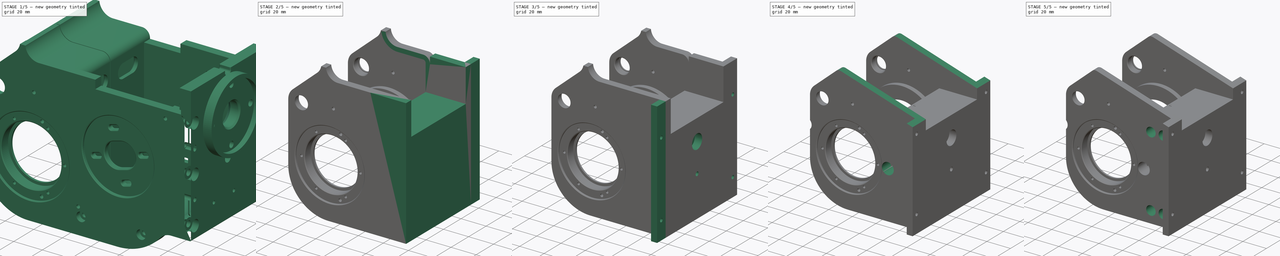
[diagram: build sequence overview — one tinted view per stage of 5, left to right]
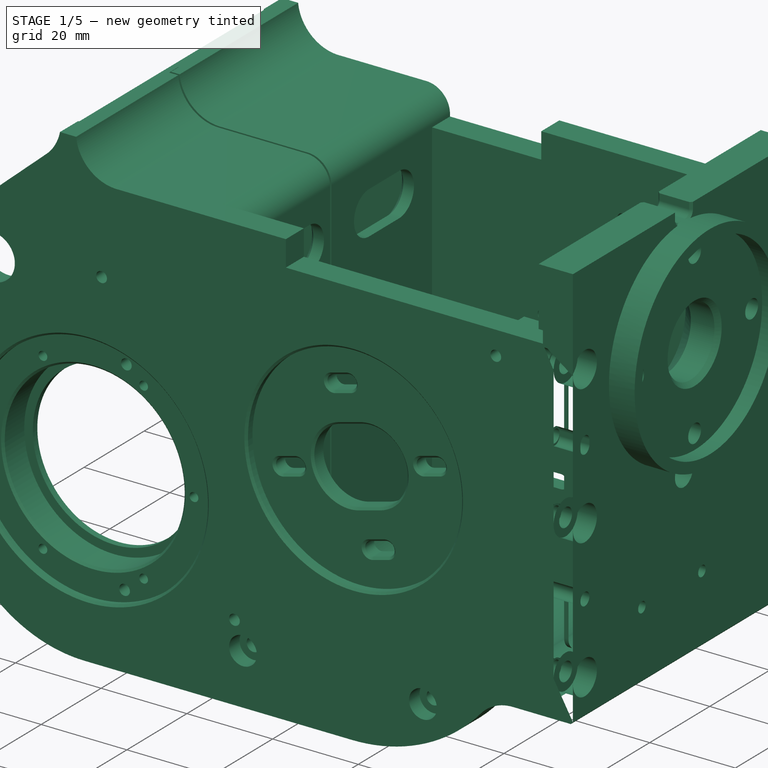
[diagram: stage 1 of 5 — iso view after this stage's code; geometry added in this stage tinted green]
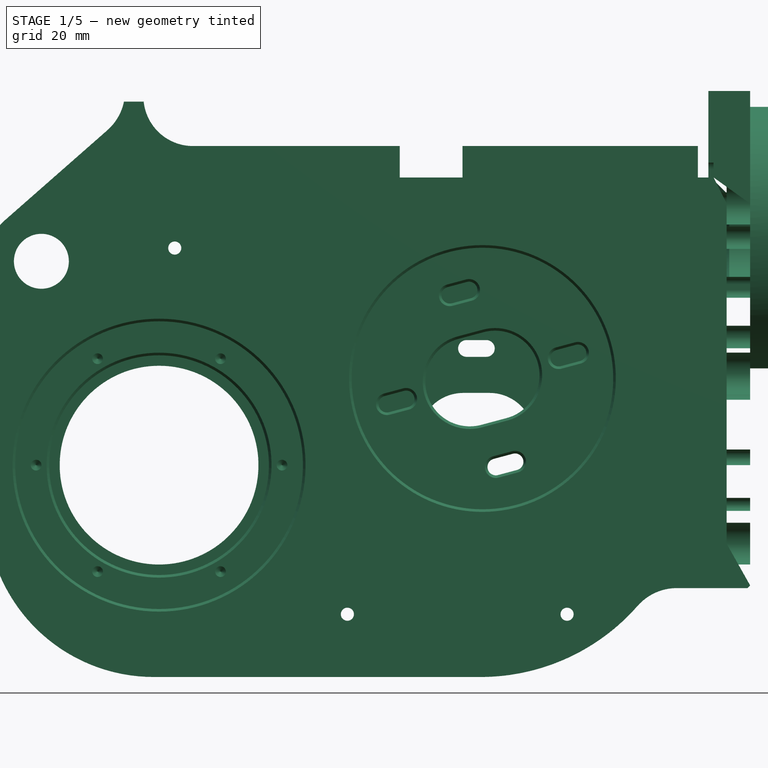
[diagram: stage 1 of 5 — front view after this stage's code; geometry added in this stage tinted green]
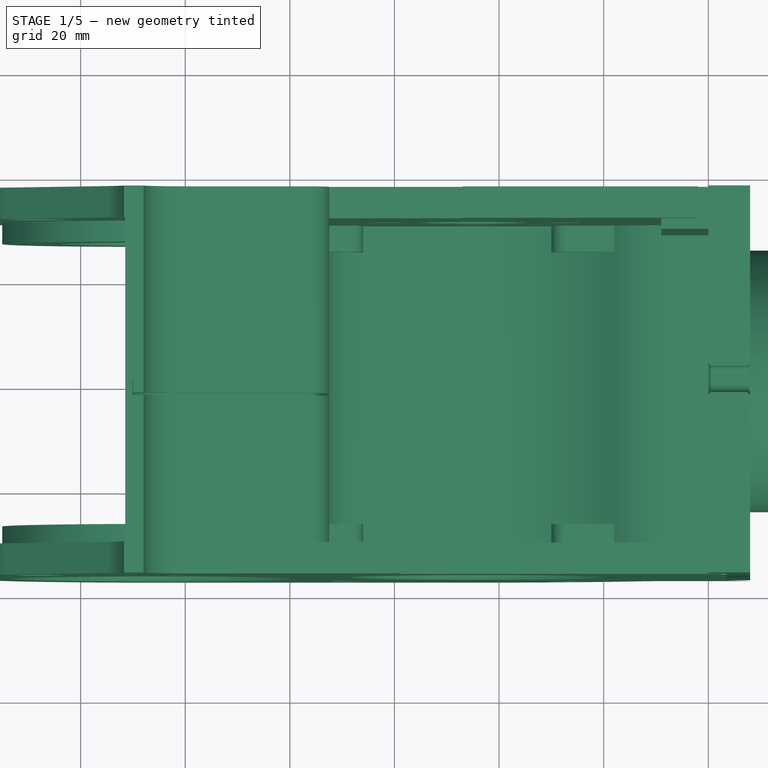
[diagram: stage 1 of 5 — top view after this stage's code; geometry added in this stage tinted green]
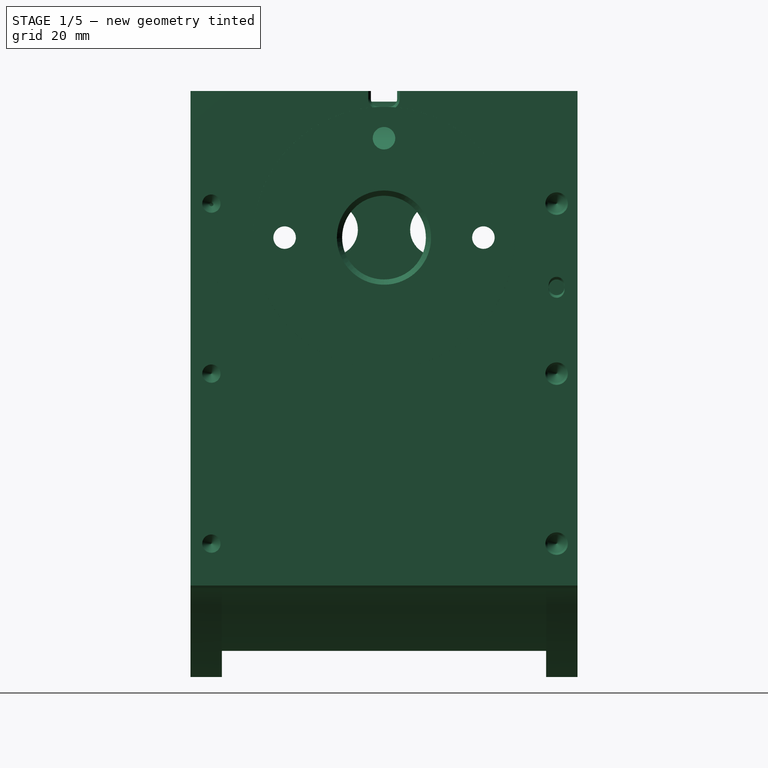
[diagram: stage 1 of 5 — right view after this stage's code; geometry added in this stage tinted green]
FCSTD DOCUMENT  (FreeCAD 0.21R33668 +26 (Git))
Label: link_1_0
License: All rights reserved
LicenseURL: https://en.wikipedia.org/wiki/All_rights_reserved
objects: Sketcher::SketchObject×19, PartDesign::Pocket×16, PartDesign::Pad×3, Part::Feature×1, PartDesign::FeatureBase×1, PartDesign::Fillet×1, PartDesign::Body×1
note: 62 computed .brp shape members not serialized (recipe doc carries the construction recipe); baked Part::Feature solids carry a one-line shape summary decoded from their .brp

FEATURE [Part::Feature] Part__Feature  label="J2_J3_1___"
  shape: bbox 152.1 x 154.8 x 160.3 mm, 713 faces (baked)
FEATURE [PartDesign::FeatureBase] BaseFeature
  BaseFeature = -> Part__Feature
FEATURE [Sketcher::SketchObject] Sketch
  ExternalGeometry = -> [BaseFeature]
  FullyConstrained = false
  MapMode = 5
  Placement = pos=(-111.5,0,0) rot=(0.57735,-0.57735,-0.57735;2.0944rad)
  Support = -> [BaseFeature]
  sketch-geometry (4):
    g0: LineSegment StartX=-86.4986 StartY=79.6822 StartZ=0 EndX=109.62 EndY=79.6822 EndZ=0
    g1: LineSegment StartX=109.62 StartY=79.6822 StartZ=0 EndX=109.62 EndY=28.0263 EndZ=0
    g2: LineSegment StartX=109.62 StartY=28.0263 StartZ=0 EndX=-86.4986 EndY=28.0263 EndZ=0
    g3: LineSegment StartX=-86.4986 StartY=28.0263 StartZ=0 EndX=-86.4986 EndY=79.6822 EndZ=0
  constraints (9):
    c: Coincident(g0,g1)
    c: Coincident(g1,g2)
    c: Coincident(g2,g3)
    c: Coincident(g3,g0)
    c: Horizontal(g0)
    c: Horizontal(g2)
    c: Vertical(g1)
    c: Vertical(g3)
    c: Horizontal(g-4,g1)
FEATURE [PartDesign::Pocket] Pocket
  BaseFeature = -> BaseFeature
  Direction = (1,0,0)
  Length = 5
  Length2 = 5
  Profile = -> Sketch
  ReferenceAxis = -> Sketch [N_Axis]
  Type = 1
FEATURE [Sketcher::SketchObject] Sketch001
  ExternalGeometry = -> [Pocket]
  FullyConstrained = false
  MapMode = 5
  Placement = pos=(-111.5,0,0) rot=(0.57735,-0.57735,-0.57735;2.0944rad)
  Support = -> [Pocket]
  sketch-geometry (8):
    g0: LineSegment StartX=-103.758 StartY=41.7015 StartZ=0 EndX=-37 EndY=41.7015 EndZ=0
    g1: LineSegment StartX=-37 StartY=41.7015 StartZ=0 EndX=-37 EndY=-98.8074 EndZ=0
    g2: LineSegment StartX=-37 StartY=-98.8074 StartZ=0 EndX=-103.758 EndY=-98.8074 EndZ=0
    g3: LineSegment StartX=-103.758 StartY=-98.8074 StartZ=0 EndX=-103.758 EndY=41.7015 EndZ=0
    g4: LineSegment StartX=114.317 StartY=40.4768 StartZ=0 EndX=37 EndY=40.4768 EndZ=0
    g5: LineSegment StartX=37 StartY=40.4768 StartZ=0 EndX=37 EndY=-98.0913 EndZ=0
    g6: LineSegment StartX=37 StartY=-98.0913 StartZ=0 EndX=114.317 EndY=-98.0913 EndZ=0
    g7: LineSegment StartX=114.317 StartY=-98.0913 StartZ=0 EndX=114.317 EndY=40.4768 EndZ=0
  constraints (18):
    c: Coincident(g0,g1)
    c: Coincident(g1,g2)
    c: Coincident(g2,g3)
    c: Coincident(g3,g0)
    c: Horizontal(g0)
    c: Horizontal(g2)
    c: Vertical(g1)
    c: Vertical(g3)
    c: Coincident(g4,g5)
    c: Coincident(g5,g6)
    c: Coincident(g6,g7)
    c: Coincident(g7,g4)
    c: Horizontal(g4)
    c: Horizontal(g6)
    c: Vertical(g5)
    c: Vertical(g7)
    c: Vertical(g-4,g4)
    c: Vertical(g0,g-3)
FEATURE [PartDesign::Pocket] Pocket001
  BaseFeature = -> Pocket
  Direction = (1,0,0)
  Length = 200
  Length2 = 200
  Profile = -> Sketch001
  ReferenceAxis = -> Sketch001 [N_Axis]
  Type = 4
FEATURE [Sketcher::SketchObject] Sketch002
  ExternalGeometry = -> [Pocket001]
  FullyConstrained = false
  MapMode = 5
  Placement = pos=(0,37,0) rot=(0,0.707107,0.707107;3.14159rad)
  Support = -> [Pocket001]
  sketch-geometry (4):
    g0: LineSegment StartX=0.5 StartY=28.0263 StartZ=0 EndX=116.939 EndY=28.0263 EndZ=0
    g1: LineSegment StartX=116.939 StartY=28.0263 StartZ=0 EndX=116.939 EndY=26 EndZ=0
    g2: LineSegment StartX=116.939 StartY=26 StartZ=0 EndX=0.5 EndY=26 EndZ=0
    g3: LineSegment StartX=0.5 StartY=26 StartZ=0 EndX=0.5 EndY=28.0263 EndZ=0
  constraints (10):
    c: Coincident(g0,g1)
    c: Coincident(g1,g2)
    c: Coincident(g2,g3)
    c: Coincident(g3,g0)
    c: Horizontal(g0)
    c: Horizontal(g2)
    c: Vertical(g1)
    c: Vertical(g3)
    c: Coincident(g0,g-3)
    c: Horizontal(g1,g-4)
FEATURE [PartDesign::Pocket] Pocket002
  BaseFeature = -> Pocket001
  Direction = (0,-1,2e-16)
  Length = 5
  Length2 = 5
  Profile = -> Sketch002
  ReferenceAxis = -> Sketch002 [N_Axis]
  Type = 1
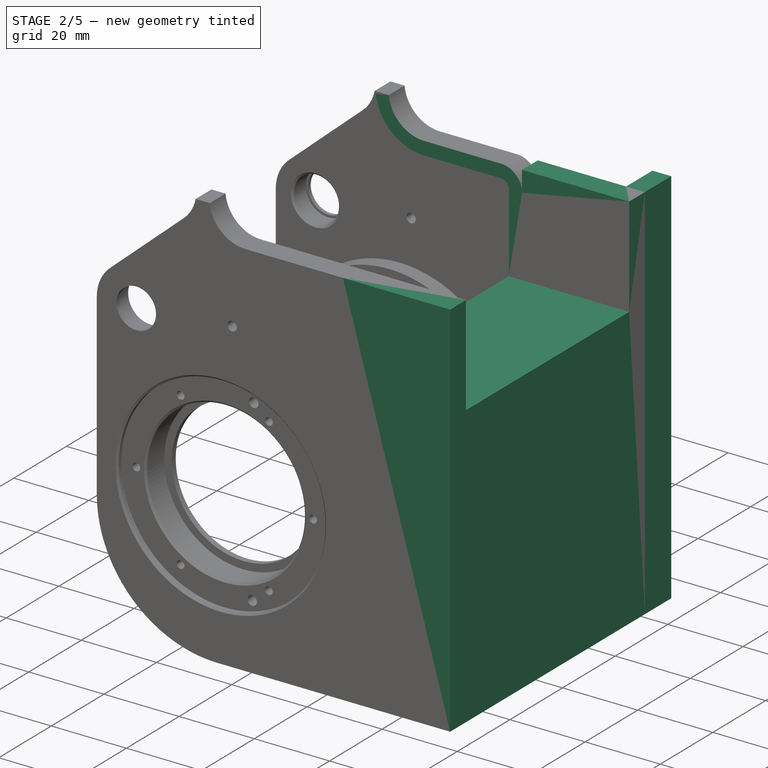
[diagram: stage 2 of 5 — iso view after this stage's code; geometry added in this stage tinted green]
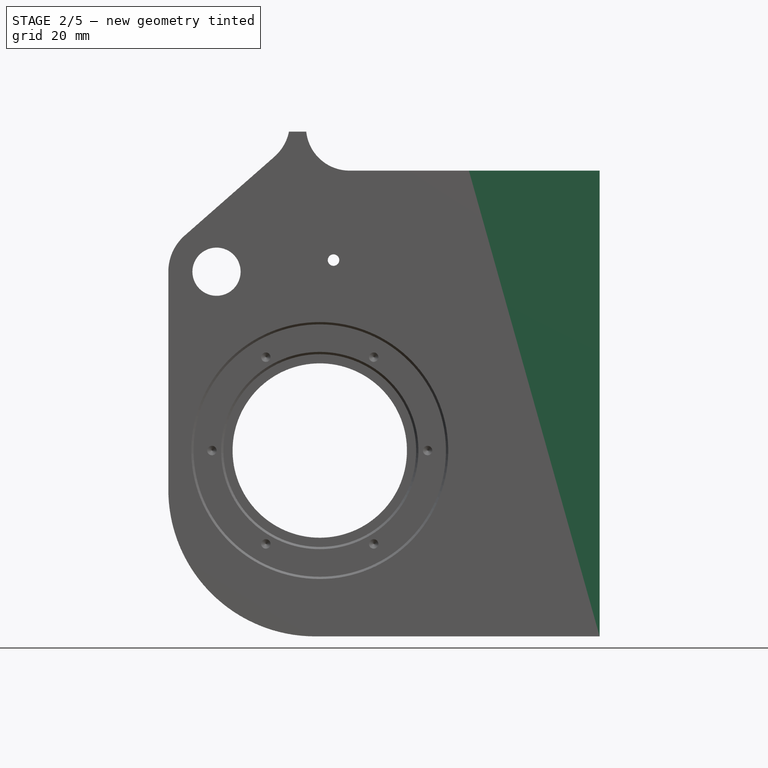
[diagram: stage 2 of 5 — front view after this stage's code; geometry added in this stage tinted green]
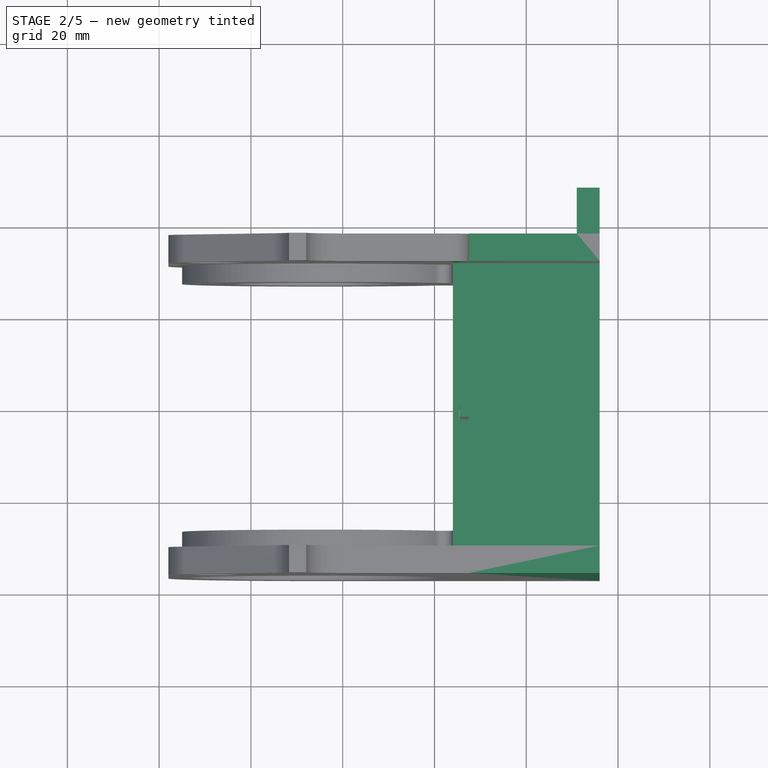
[diagram: stage 2 of 5 — top view after this stage's code; geometry added in this stage tinted green]
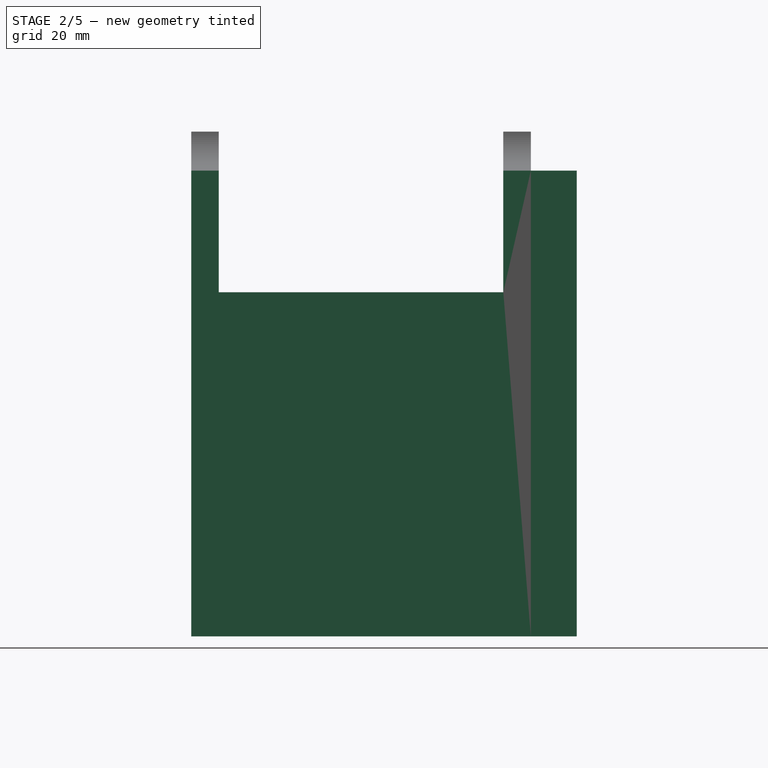
[diagram: stage 2 of 5 — right view after this stage's code; geometry added in this stage tinted green]
FEATURE [Sketcher::SketchObject] Sketch003
  ExternalGeometry = -> [Pocket002]
  FullyConstrained = false
  MapMode = 5
  Placement = pos=(0,37,0) rot=(0,0.707107,0.707107;3.14159rad)
  Support = -> [Pocket002]
  sketch-geometry (4):
    g0: LineSegment StartX=-31.8277 StartY=43.3981 StartZ=0 EndX=72.5 EndY=43.3981 EndZ=0
    g1: LineSegment StartX=72.5 StartY=43.3981 StartZ=0 EndX=72.5 EndY=-93.7971 EndZ=0
    g2: LineSegment StartX=72.5 StartY=-93.7971 StartZ=0 EndX=-31.8277 EndY=-93.7971 EndZ=0
    g3: LineSegment StartX=-31.8277 StartY=-93.7971 StartZ=0 EndX=-31.8277 EndY=43.3981 EndZ=0
  constraints (9):
    c: Coincident(g0,g1)
    c: Coincident(g1,g2)
    c: Coincident(g2,g3)
    c: Coincident(g3,g0)
    c: Horizontal(g0)
    c: Horizontal(g2)
    c: Vertical(g1)
    c: Vertical(g3)
    c: Vertical(g0,g-5)
FEATURE [PartDesign::Pocket] Pocket003
  BaseFeature = -> Pocket002
  Direction = (0,-1,2e-16)
  Length = 5
  Length2 = 5
  Profile = -> Sketch003
  ReferenceAxis = -> Sketch003 [N_Axis]
  Type = 1
FEATURE [Sketcher::SketchObject] Sketch004
  ExternalGeometry = -> [Pocket003]
  FullyConstrained = true
  MapMode = 5
  Placement = pos=(0,37,0) rot=(0,0.707107,0.707107;3.14159rad)
  Support = -> [Pocket003]
  sketch-geometry (4):
    g0: LineSegment StartX=72.5 StartY=17.5 StartZ=0 EndX=44 EndY=17.5 EndZ=0
    g1: LineSegment StartX=44 StartY=17.5 StartZ=0 EndX=44 EndY=-84 EndZ=0
    g2: LineSegment StartX=44 StartY=-84 StartZ=0 EndX=72.5 EndY=-84 EndZ=0
    g3: LineSegment StartX=72.5 StartY=-84 StartZ=0 EndX=72.5 EndY=17.5 EndZ=0
  constraints (11):
    c: Coincident(g0,g1)
    c: Coincident(g1,g2)
    c: Coincident(g2,g3)
    c: Coincident(g3,g0)
    c: Horizontal(g0)
    c: Horizontal(g2)
    c: Vertical(g1)
    c: Vertical(g3)
    c: Coincident(g0,g-3)
    c: Horizontal(g1,g-4)
    c: DistanceX(g0,g-5) = 61
FEATURE [PartDesign::Pad] Pad
  BaseFeature = -> Pocket003
  Direction = (0,1,-2e-16)
  Length = 10
  Length2 = 10
  Profile = -> Sketch004
  ReferenceAxis = -> Sketch004 [N_Axis]
  Reversed = true
  Type = 3
  UpToFace = -> Pocket003 [Face35]
FEATURE [Sketcher::SketchObject] Sketch005
  ExternalGeometry = -> [Pad]
  FullyConstrained = true
  MapMode = 5
  Placement = pos=(-76,0,0) rot=(0.57735,-0.57735,-0.57735;2.0944rad)
  Support = -> [Pad]
  sketch-geometry (4):
    g0: LineSegment StartX=31 StartY=26 StartZ=0 EndX=-31 EndY=26 EndZ=0
    g1: LineSegment StartX=-31 StartY=26 StartZ=0 EndX=-31 EndY=-9 EndZ=0
    g2: LineSegment StartX=-31 StartY=-9 StartZ=0 EndX=31 EndY=-9 EndZ=0
    g3: LineSegment StartX=31 StartY=-9 StartZ=0 EndX=31 EndY=26 EndZ=0
  constraints (11):
    c: Coincident(g0,g1)
    c: Coincident(g1,g2)
    c: Coincident(g2,g3)
    c: Coincident(g3,g0)
    c: Horizontal(g0)
    c: Horizontal(g2)
    c: Vertical(g1)
    c: Vertical(g3)
    c: Coincident(g0,g-4)
    c: Vertical(g0,g-3)
    c: DistanceY(g2,g-1) = 9
FEATURE [PartDesign::Pocket] Pocket004
  BaseFeature = -> Pad
  Direction = (1,0,0)
  Length = 100
  Length2 = 100
  Profile = -> Sketch005
  ReferenceAxis = -> Sketch005 [N_Axis]
  Type = 4
FEATURE [Sketcher::SketchObject] Sketch006
  ExternalGeometry = -> [Pocket004]
  FullyConstrained = true
  MapMode = 5
  Placement = pos=(0,37,-1.04e-14) rot=(0,0.707107,0.707107;3.14159rad)
  Support = -> [Pocket004]
  sketch-geometry (4):
    g0: LineSegment StartX=44 StartY=17.5 StartZ=0 EndX=49 EndY=17.5 EndZ=0
    g1: LineSegment StartX=49 StartY=17.5 StartZ=0 EndX=49 EndY=-84 EndZ=0
    g2: LineSegment StartX=49 StartY=-84 StartZ=0 EndX=44 EndY=-84 EndZ=0
    g3: LineSegment StartX=44 StartY=-84 StartZ=0 EndX=44 EndY=17.5 EndZ=0
  constraints (11):
    c: Coincident(g0,g1)
    c: Coincident(g1,g2)
    c: Coincident(g2,g3)
    c: Coincident(g3,g0)
    c: Horizontal(g0)
    c: Horizontal(g2)
    c: Vertical(g1)
    c: Vertical(g3)
    c: Coincident(g0,g-4)
    c: DistanceX(g0,g0) = 5
    c: Horizontal(g2,g-3)
FEATURE [PartDesign::Pad] Pad001
  BaseFeature = -> Pocket004
  Direction = (0,1,-2e-16)
  Length = 10
  Length2 = 10
  Profile = -> Sketch006
  ReferenceAxis = -> Sketch006 [N_Axis]
  Type = 0
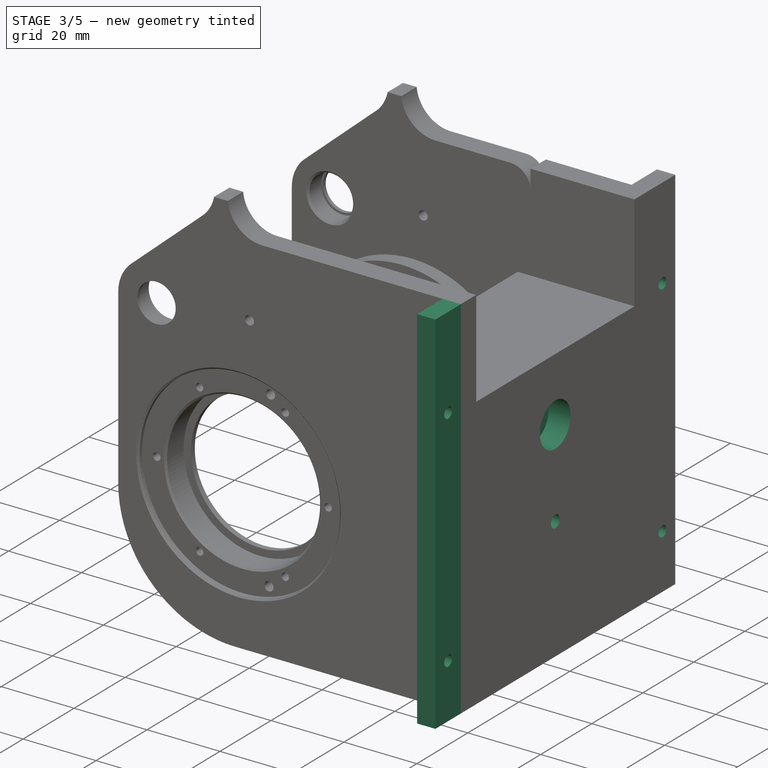
[diagram: stage 3 of 5 — iso view after this stage's code; geometry added in this stage tinted green]
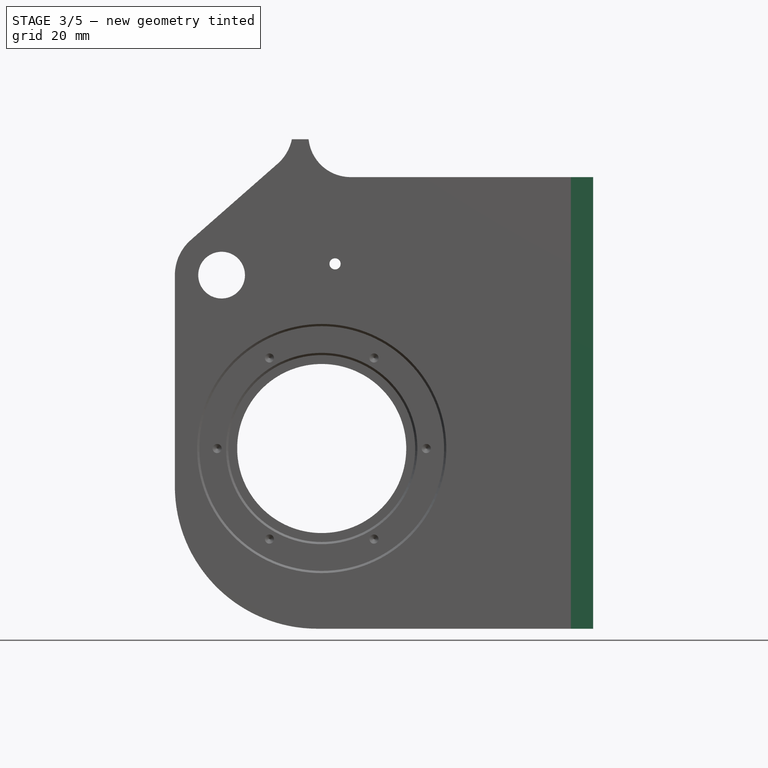
[diagram: stage 3 of 5 — front view after this stage's code; geometry added in this stage tinted green]
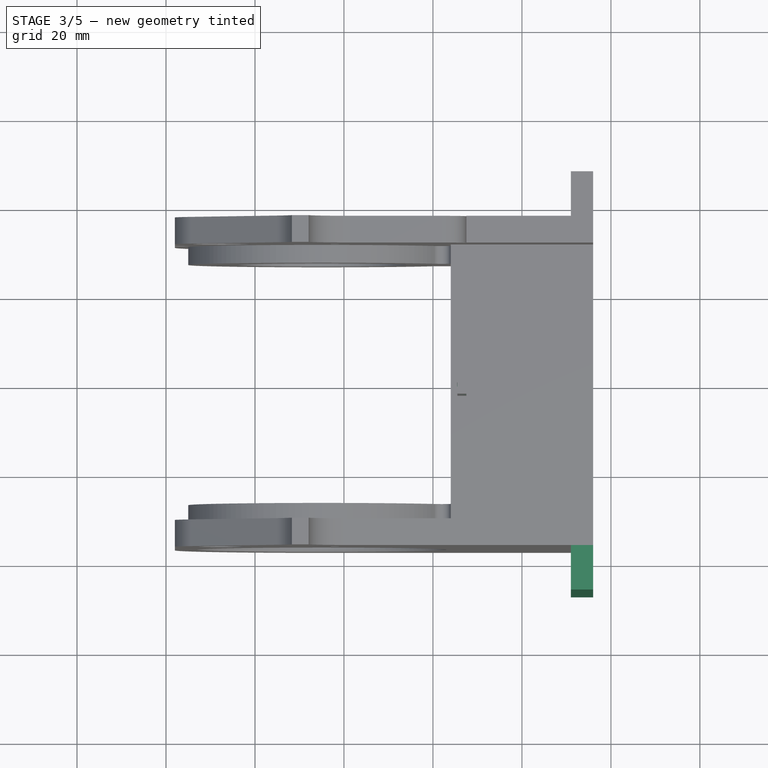
[diagram: stage 3 of 5 — top view after this stage's code; geometry added in this stage tinted green]
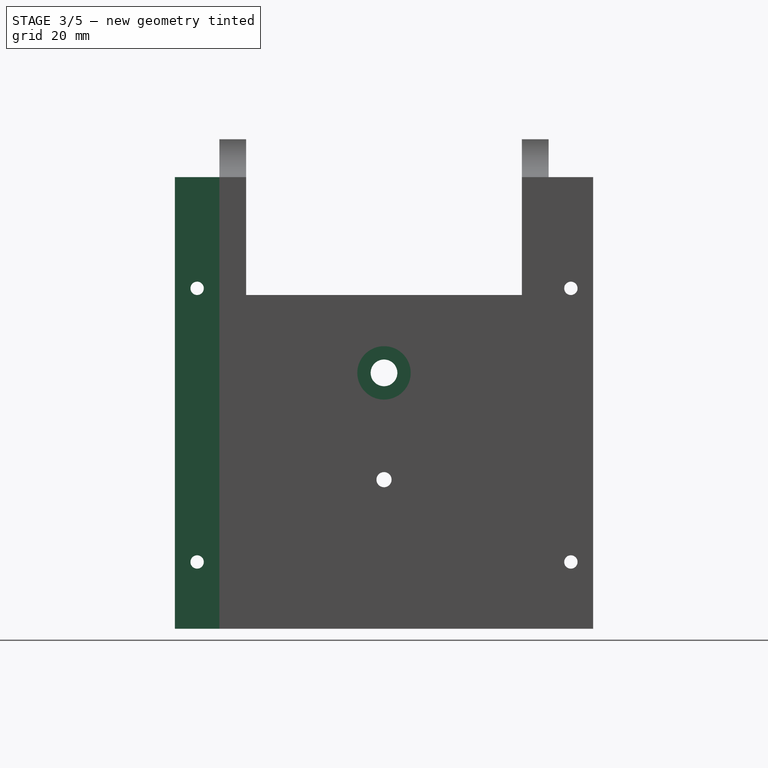
[diagram: stage 3 of 5 — right view after this stage's code; geometry added in this stage tinted green]
FEATURE [Sketcher::SketchObject] Sketch007
  ExternalGeometry = -> [Pad001]
  FullyConstrained = true
  MapMode = 5
  Placement = pos=(0,-37,0) rot=(1,0,0;1.5708rad)
  Support = -> [Pad001]
  sketch-geometry (4):
    g0: LineSegment StartX=-44 StartY=17.5 StartZ=0 EndX=-49 EndY=17.5 EndZ=0
    g1: LineSegment StartX=-49 StartY=17.5 StartZ=0 EndX=-49 EndY=-84 EndZ=0
    g2: LineSegment StartX=-49 StartY=-84 StartZ=0 EndX=-44 EndY=-84 EndZ=0
    g3: LineSegment StartX=-44 StartY=-84 StartZ=0 EndX=-44 EndY=17.5 EndZ=0
  constraints (12):
    c: Coincident(g0,g1)
    c: Coincident(g1,g2)
    c: Coincident(g2,g3)
    c: Coincident(g3,g0)
    c: Horizontal(g0)
    c: Horizontal(g2)
    c: Vertical(g1)
    c: Vertical(g3)
    c: DistanceX(g0,g0) = 5
    c: Vertical(g0,g-4)
    c: Horizontal(g0,g-4)
    c: Horizontal(g2,g-3)
FEATURE [PartDesign::Pad] Pad002
  BaseFeature = -> Pad001
  Direction = (0,-1,2e-16)
  Length = 10
  Length2 = 10
  Profile = -> Sketch007
  ReferenceAxis = -> Sketch007 [N_Axis]
  Type = 0
FEATURE [Sketcher::SketchObject] Sketch008
  ExternalGeometry = -> [Pad002]
  FullyConstrained = true
  MapMode = 5
  Placement = pos=(-49,0,0) rot=(0.57735,-0.57735,-0.57735;2.0944rad)
  Support = -> [Pad002]
  sketch-geometry (4):
    g0: Circle CenterX=42 CenterY=-7.5 CenterZ=0 NormalX=0 NormalY=0 NormalZ=1 AngleXU=0 Radius=1.5
    g1: Circle CenterX=42 CenterY=-69 CenterZ=0 NormalX=0 NormalY=0 NormalZ=1 AngleXU=0 Radius=1.5
    g2: Circle CenterX=-42 CenterY=-7.5 CenterZ=0 NormalX=0 NormalY=0 NormalZ=1 AngleXU=0 Radius=1.5
    g3: Circle CenterX=-42 CenterY=-69 CenterZ=0 NormalX=0 NormalY=0 NormalZ=1 AngleXU=0 Radius=1.5
  constraints (14):
    c: Vertical(g3,g2)
    c: Equal(g0,g1)
    c: Equal(g1,g3)
    c: Equal(g2,g3)
    c: Vertical(g1,g0)
    c: Horizontal(g2,g0)
    c: Horizontal(g3,g1)
    c: DistanceX(g0,g-3) = 5
    c: DistanceX(g-4,g2) = 5
    c: DistanceY(g0,g-3) = 25
    c: Diameter(g2) = 3
    c: DistanceY(g-5,g1) = 15
    c: DistanceX(g3,g1) = 84
    c: DistanceY(g1,g0) = 61.5
FEATURE [PartDesign::Pocket] Pocket005
  BaseFeature = -> Pad002
  Direction = (1,0,0)
  Length = 5
  Length2 = 5
  Profile = -> Sketch008
  ReferenceAxis = -> Sketch008 [N_Axis]
  Type = 1
FEATURE [Sketcher::SketchObject] Sketch009
  ExternalGeometry = -> [Pocket005]
  FullyConstrained = true
  MapMode = 5
  Placement = pos=(-44,0,0) rot=(0.57735,0.57735,0.57735;2.0944rad)
  Support = -> [Pocket005]
  sketch-geometry (2):
    g0: Circle CenterX=0 CenterY=-26.5 CenterZ=0 NormalX=0 NormalY=0 NormalZ=1 AngleXU=0 Radius=3
    g1: Circle CenterX=0 CenterY=-50.5 CenterZ=0 NormalX=0 NormalY=0 NormalZ=1 AngleXU=0 Radius=1.7
  constraints (6):
    c: PointOnObject(g0,g-2)
    c: Diameter(g0) = 6
    c: DistanceY(g-3,g0) = 57.5
    c: PointOnObject(g1,g-2)
    c: Diameter(g1) = 3.4
    c: DistanceY(g1,g0) = 24
FEATURE [PartDesign::Pocket] Pocket006
  BaseFeature = -> Pocket005
  Direction = (-1,0,0)
  Length = 5
  Length2 = 5
  Profile = -> Sketch009
  ReferenceAxis = -> Sketch009 [N_Axis]
  Type = 1
FEATURE [Sketcher::SketchObject] Sketch010
  ExternalGeometry = -> [Pocket006]
  FullyConstrained = true
  MapMode = 5
  Placement = pos=(-44,0,0) rot=(0.57735,0.57735,0.57735;2.0944rad)
  Support = -> [Pocket006]
  sketch-geometry (1):
    g0: Circle CenterX=0 CenterY=-26.5 CenterZ=0 NormalX=0 NormalY=0 NormalZ=1 AngleXU=0 Radius=6
  constraints (2):
    c: Coincident(g0,g-4)
    c: Diameter(g0) = 12
FEATURE [PartDesign::Pocket] Pocket007
  BaseFeature = -> Pocket006
  Direction = (-1,0,0)
  Length = 6
  Length2 = 5
  Profile = -> Sketch010
  ReferenceAxis = -> Sketch010 [N_Axis]
  Type = 0
FEATURE [Sketcher::SketchObject] Sketch011
  ExternalGeometry = -> [Pocket007]
  FullyConstrained = true
  MapMode = 5
  Placement = pos=(-76,0,0) rot=(0.57735,-0.57735,-0.57735;2.0944rad)
  Support = -> [Pocket007]
  sketch-geometry (1):
    g0: Circle CenterX=0 CenterY=-50.5 CenterZ=0 NormalX=0 NormalY=0 NormalZ=1 AngleXU=0 Radius=5.6
  constraints (2):
    c: Coincident(g0,g-3)
    c: Diameter(g0) = 11.2
FEATURE [PartDesign::Pocket] Pocket008
  BaseFeature = -> Pocket007
  Direction = (1,0,0)
  Length = 5.2
  Length2 = 5
  Profile = -> Sketch011
  ReferenceAxis = -> Sketch011 [N_Axis]
  Type = 0
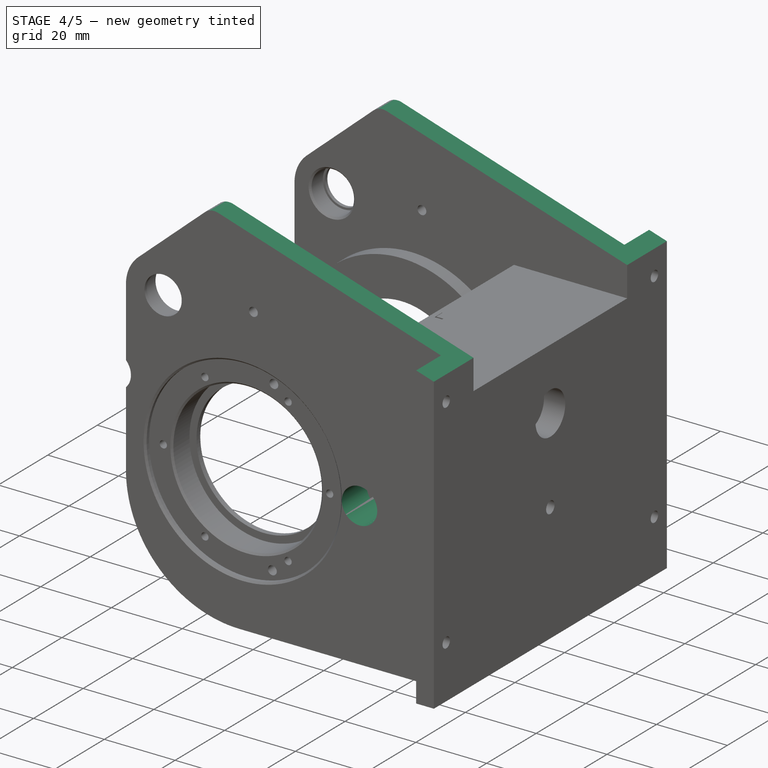
[diagram: stage 4 of 5 — iso view after this stage's code; geometry added in this stage tinted green]
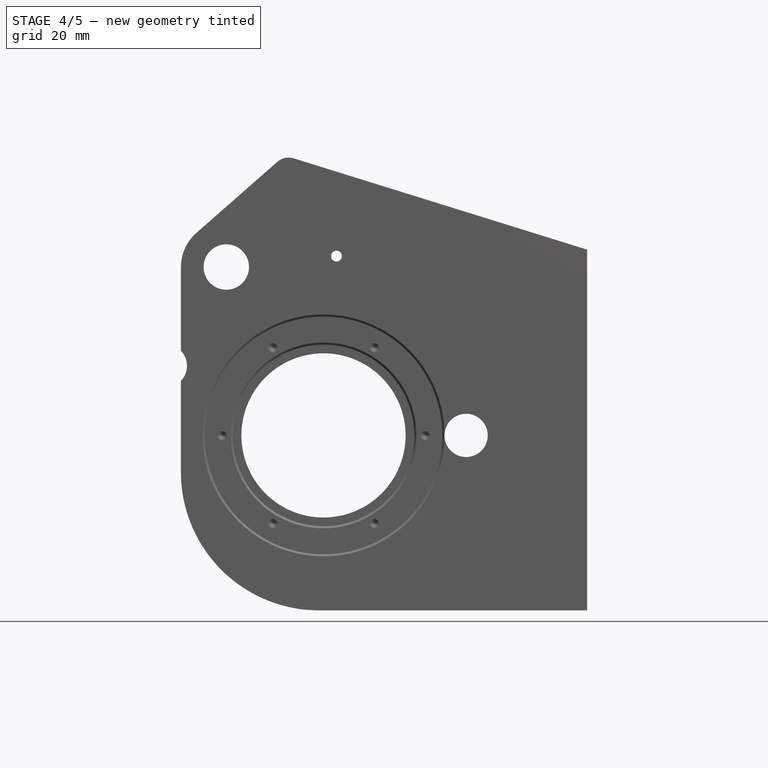
[diagram: stage 4 of 5 — front view after this stage's code; geometry added in this stage tinted green]
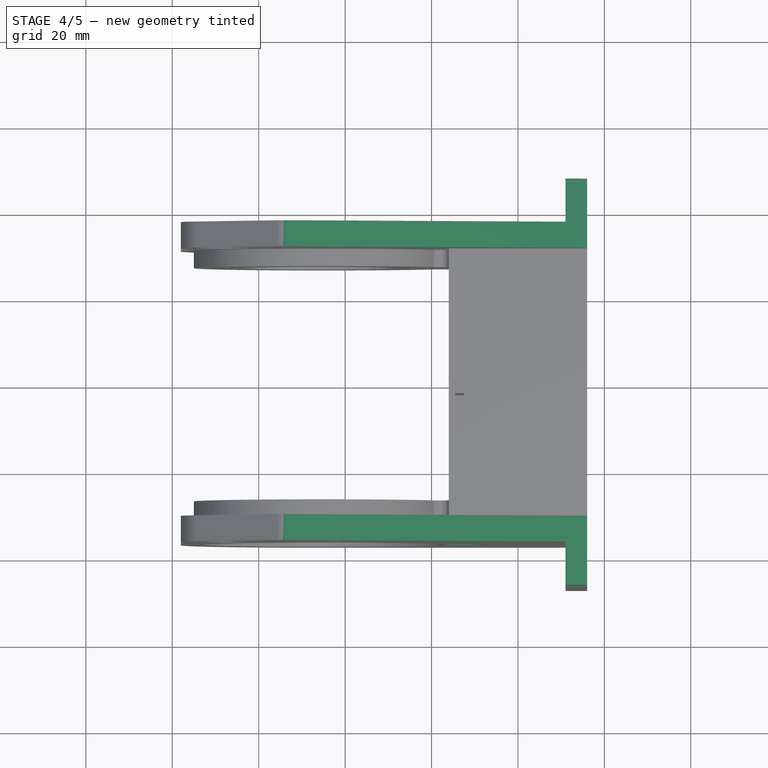
[diagram: stage 4 of 5 — top view after this stage's code; geometry added in this stage tinted green]
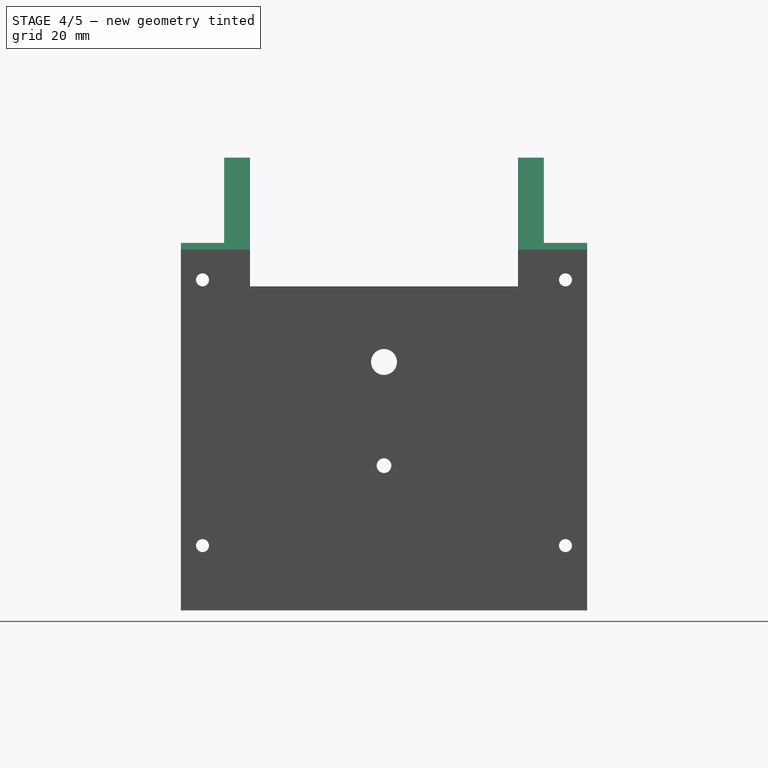
[diagram: stage 4 of 5 — right view after this stage's code; geometry added in this stage tinted green]
FEATURE [Sketcher::SketchObject] Sketch012
  ExternalGeometry = -> [Pocket008]
  FullyConstrained = true
  MapMode = 5
  Placement = pos=(0,-37,0) rot=(1,0,0;1.5708rad)
  Support = -> [Pocket008]
  sketch-geometry (1):
    g0: Circle CenterX=-141.597 CenterY=-27.3979 CenterZ=0 NormalX=0 NormalY=0 NormalZ=1 AngleXU=0 Radius=5
  constraints (3):
    c: Horizontal(g-4,g0)
    c: DistanceX(g0,g-3) = 28
    c: Diameter(g0) = 10
FEATURE [PartDesign::Pocket] Pocket009
  BaseFeature = -> Pocket008
  Direction = (0,1,-2e-16)
  Length = 5
  Length2 = 5
  Profile = -> Sketch012
  ReferenceAxis = -> Sketch012 [N_Axis]
  Type = 1
FEATURE [Sketcher::SketchObject] Sketch013
  ExternalGeometry = -> [Pocket009]
  FullyConstrained = true
  MapMode = 5
  Placement = pos=(0,-37,0) rot=(1,0,0;1.5708rad)
  Support = -> [Pocket009]
  sketch-geometry (1):
    g0: Circle CenterX=-72 CenterY=-43.5 CenterZ=0 NormalX=0 NormalY=0 NormalZ=1 AngleXU=0 Radius=5
  constraints (3):
    c: Horizontal(g-3,g0)
    c: DistanceX(g0,g-4) = 28
    c: Diameter(g0) = 10
FEATURE [PartDesign::Pocket] Pocket010
  BaseFeature = -> Pocket009
  Direction = (0,1,-2e-16)
  Length = 5
  Length2 = 5
  Profile = -> Sketch013
  ReferenceAxis = -> Sketch013 [N_Axis]
  Type = 1
FEATURE [Sketcher::SketchObject] Sketch014
  ExternalGeometry = -> [Pocket010]
  FullyConstrained = false
  MapMode = 5
  Placement = pos=(0,-47,1.32e-14) rot=(1,0,0;1.5708rad)
  Support = -> [Pocket010]
  sketch-geometry (3):
    g0: LineSegment StartX=-44 StartY=-0.5 StartZ=0 EndX=-134 EndY=27.5 EndZ=0
    g1: LineSegment StartX=-134 StartY=27.5 StartZ=0 EndX=-44 EndY=35.5989 EndZ=0
    g2: LineSegment StartX=-44 StartY=35.5989 StartZ=0 EndX=-44 EndY=-0.5 EndZ=0
  constraints (8):
    c: PointOnObject(g0,g-3)
    c: Coincident(g0,g1)
    c: Coincident(g1,g2)
    c: Coincident(g2,g0)
    c: Vertical(g2)
    c: DistanceY(g0,g-3) = 18
    c: DistanceY(g0,g0) = 28
    c: DistanceX(g0,g0) = 90
FEATURE [PartDesign::Pocket] Pocket011
  BaseFeature = -> Pocket010
  Direction = (0,1,-2e-16)
  Length = 5
  Length2 = 5
  Profile = -> Sketch014
  ReferenceAxis = -> Sketch014 [N_Axis]
  Type = 1
FEATURE [PartDesign::Fillet] Fillet
  Base = -> Pocket011 [Edge317,Edge71]
  BaseFeature = -> Pocket011
  Radius = 4
  SupportTransform = false
  UseAllEdges = false
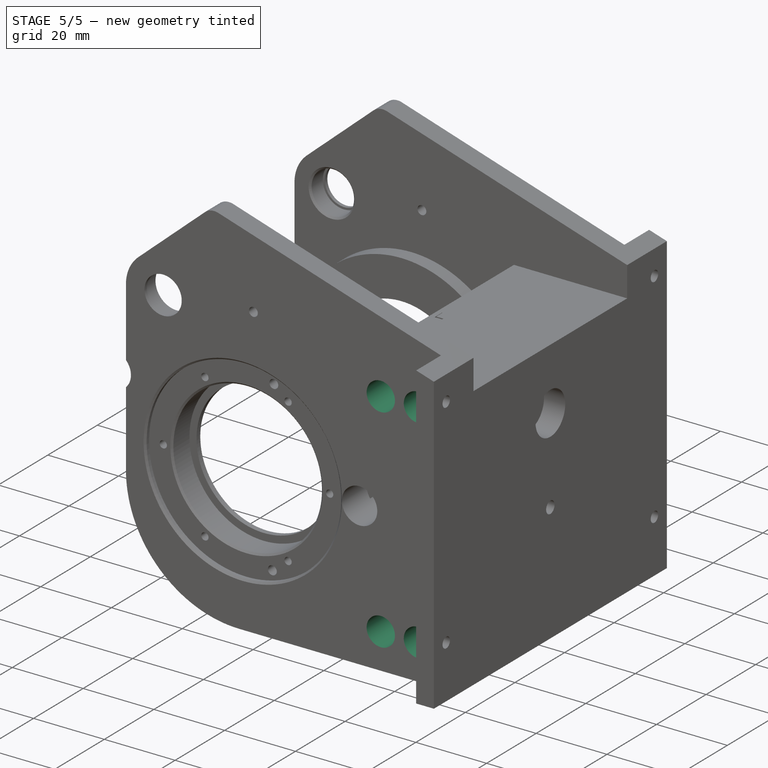
[diagram: stage 5 of 5 — iso view after this stage's code; geometry added in this stage tinted green]
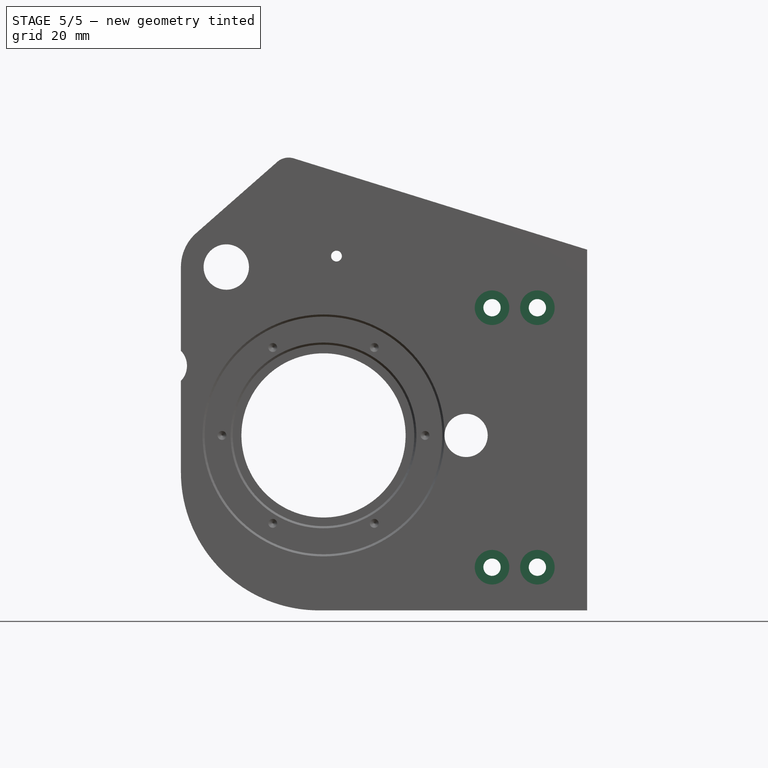
[diagram: stage 5 of 5 — front view after this stage's code; geometry added in this stage tinted green]
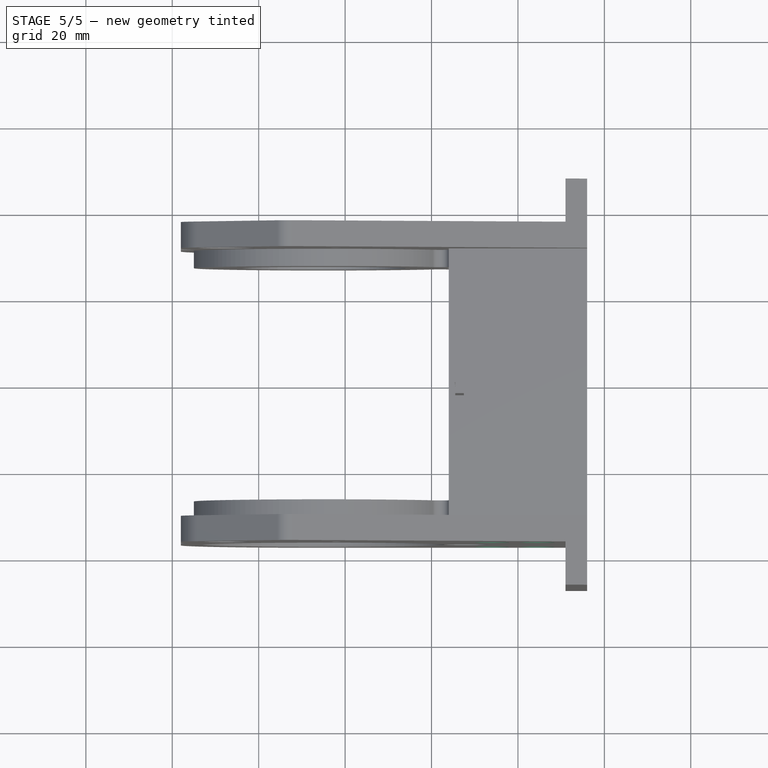
[diagram: stage 5 of 5 — top view after this stage's code; geometry added in this stage tinted green]
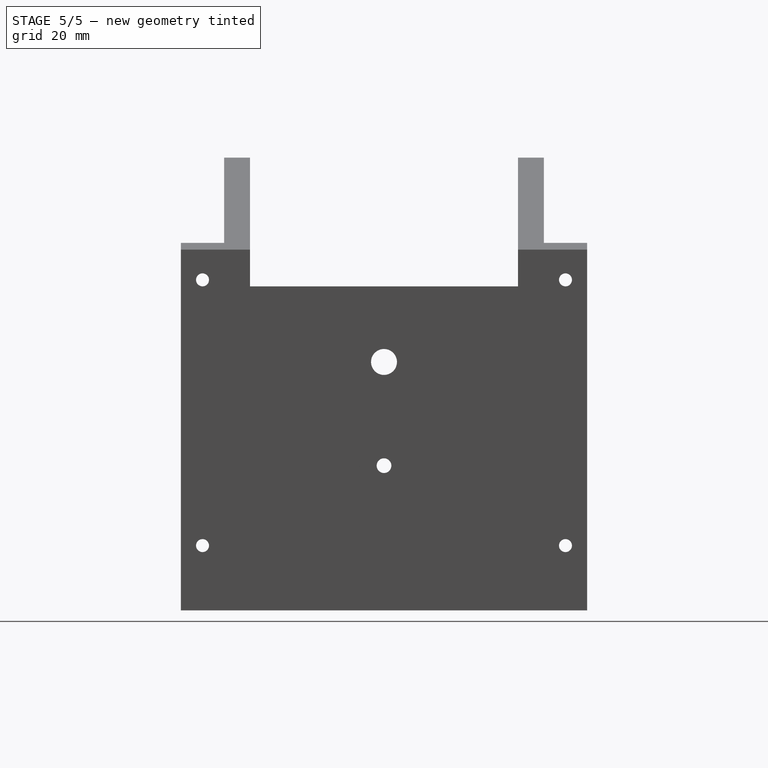
[diagram: stage 5 of 5 — right view after this stage's code; geometry added in this stage tinted green]
FEATURE [Sketcher::SketchObject] Sketch015
  ExternalGeometry = -> [Fillet]
  FullyConstrained = true
  MapMode = 5
  Placement = pos=(0,-37,0) rot=(1,0,0;1.5708rad)
  Support = -> [Fillet]
  sketch-geometry (4):
    g0: Circle CenterX=-66 CenterY=-13.9444 CenterZ=0 NormalX=0 NormalY=0 NormalZ=1 AngleXU=0 Radius=2
    g1: Circle CenterX=-55.5 CenterY=-13.9444 CenterZ=0 NormalX=0 NormalY=0 NormalZ=1 AngleXU=0 Radius=2
    g2: Circle CenterX=-66 CenterY=-74 CenterZ=0 NormalX=0 NormalY=0 NormalZ=1 AngleXU=0 Radius=2
    g3: Circle CenterX=-55.5 CenterY=-74 CenterZ=0 NormalX=0 NormalY=0 NormalZ=1 AngleXU=0 Radius=2
  constraints (13):
    c: Horizontal(g0,g1)
    c: Horizontal(g2,g3)
    c: Vertical(g2,g0)
    c: Vertical(g1,g3)
    c: DistanceX(g-3,g-4) = 23.5
    c: DistanceX(g1,g-4) = 6.5
    c: Diameter(g0) = 4
    c: Diameter(g1) = 4
    c: DistanceX(g-3,g0) = 6.5
    c: DistanceY(g1,g-4) = 15
    c: Equal(g3,g1)
    c: Equal(g2,g3)
    c: DistanceY(g-4,g3) = 10
FEATURE [PartDesign::Pocket] Pocket012
  BaseFeature = -> Fillet
  Direction = (0,1,-2e-16)
  Length = 5
  Length2 = 5
  Profile = -> Sketch015
  ReferenceAxis = -> Sketch015 [N_Axis]
  Type = 1
FEATURE [Sketcher::SketchObject] Sketch016
  ExternalGeometry = -> [Pocket012]
  FullyConstrained = true
  MapMode = 5
  Placement = pos=(0,-37,0) rot=(1,0,0;1.5708rad)
  Support = -> [Pocket012]
  sketch-geometry (4):
    g0: Circle CenterX=-66 CenterY=-13.9444 CenterZ=0 NormalX=0 NormalY=0 NormalZ=1 AngleXU=0 Radius=4
    g1: Circle CenterX=-55.5 CenterY=-13.9444 CenterZ=0 NormalX=0 NormalY=0 NormalZ=1 AngleXU=0 Radius=4
    g2: Circle CenterX=-55.5 CenterY=-74 CenterZ=0 NormalX=0 NormalY=0 NormalZ=1 AngleXU=0 Radius=4
    g3: Circle CenterX=-66 CenterY=-74 CenterZ=0 NormalX=0 NormalY=0 NormalZ=1 AngleXU=0 Radius=4
  constraints (8):
    c: Coincident(g0,g-6)
    c: Coincident(g1,g-5)
    c: Coincident(g2,g-4)
    c: Coincident(g3,g-3)
    c: Equal(g3,g2)
    c: Equal(g2,g1)
    c: Equal(g1,g0)
    c: Diameter(g1) = 8
FEATURE [PartDesign::Pocket] Pocket013
  BaseFeature = -> Pocket012
  Direction = (0,1,-2e-16)
  Length = 15
  Length2 = 5
  Profile = -> Sketch016
  ReferenceAxis = -> Sketch016 [N_Axis]
  Type = 0
FEATURE [Sketcher::SketchObject] Sketch017
  ExternalGeometry = -> [Pocket013]
  FullyConstrained = true
  MapMode = 5
  Placement = pos=(0,37,-1.04e-14) rot=(0,0.707107,0.707107;3.14159rad)
  Support = -> [Pocket013]
  sketch-geometry (4):
    g0: Circle CenterX=66 CenterY=-74 CenterZ=0 NormalX=0 NormalY=0 NormalZ=1 AngleXU=0 Radius=4
    g1: Circle CenterX=55.5 CenterY=-74 CenterZ=0 NormalX=0 NormalY=0 NormalZ=1 AngleXU=0 Radius=4
    g2: Circle CenterX=66 CenterY=-13.9444 CenterZ=0 NormalX=0 NormalY=0 NormalZ=1 AngleXU=0 Radius=4
    g3: Circle CenterX=55.5 CenterY=-13.9444 CenterZ=0 NormalX=0 NormalY=0 NormalZ=1 AngleXU=0 Radius=4
  constraints (8):
    c: Coincident(g0,g-6)
    c: Coincident(g1,g-5)
    c: Coincident(g2,g-3)
    c: Coincident(g3,g-4)
    c: Equal(g2,g3)
    c: Equal(g1,g0)
    c: Equal(g0,g2)
    c: Diameter(g2) = 8
FEATURE [PartDesign::Pocket] Pocket014
  BaseFeature = -> Pocket013
  Direction = (0,-1,2e-16)
  Length = 15
  Length2 = 5
  Profile = -> Sketch017
  ReferenceAxis = -> Sketch017 [N_Axis]
  Type = 0
FEATURE [Sketcher::SketchObject] Sketch018
  ExternalGeometry = -> [Pocket014]
  FullyConstrained = true
  MapMode = 5
  Placement = pos=(-70.8,0,0) rot=(0.57735,-0.57735,-0.57735;2.0944rad)
  Support = -> [Pocket014]
  sketch-geometry (1):
    g0: Circle CenterX=0 CenterY=-50.5 CenterZ=0 NormalX=0 NormalY=0 NormalZ=1 AngleXU=0 Radius=5.6
  constraints (2):
    c: Coincident(g0,g-3)
    c: Tangent(g0,g-3)
FEATURE [PartDesign::Pocket] Pocket015
  BaseFeature = -> Pocket014
  Direction = (1,0,0)
  Length = 22
  Length2 = 5
  Profile = -> Sketch018
  ReferenceAxis = -> Sketch018 [N_Axis]
  Type = 0
FEATURE [PartDesign::Body] Body
  BaseFeature = -> Part__Feature
  Group = -> [BaseFeature,Sketch,Pocket,Sketch001,Pocket001,Sketch002,Pocket002,Sketch003,Pocket003,Sketch004,Pad,Sketch005,Pocket004,Sketch006,Pad001,Sketch007,Pad002,Sketch008,Pocket005,Sketch009,Pocket006,Sketch010,Pocket007,Sketch011,Pocket008,Sketch012,Pocket009,Sketch013,Pocket010,Sketch014,Pocket011,Fillet,Sketch015,Pocket012,Sketch016,Pocket013,Sketch017,Pocket014,Sketch018,Pocket015]
  Origin = -> Origin
  Tip = -> Pocket015
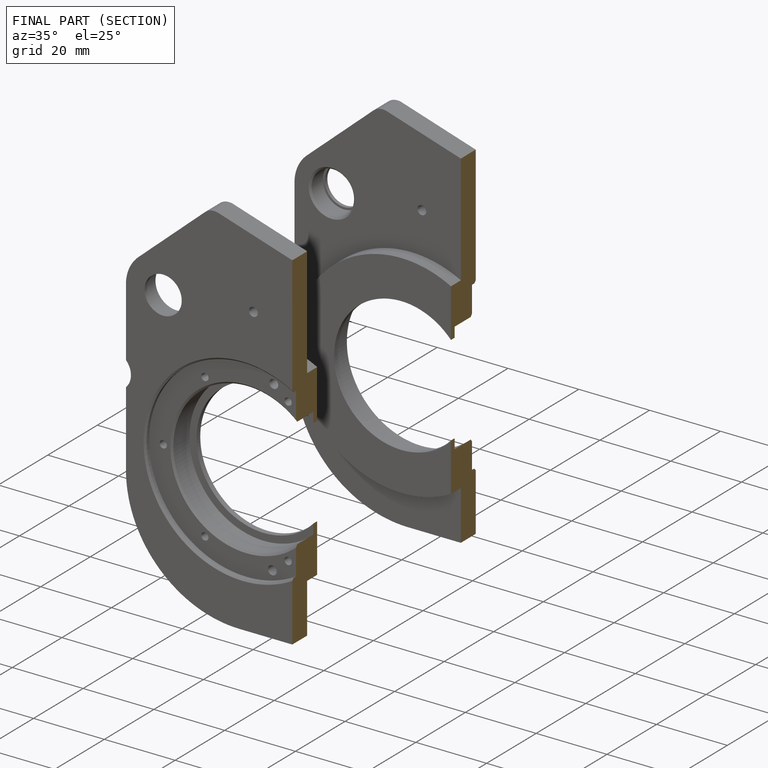
[diagram: finished part — half-section view (interior)]
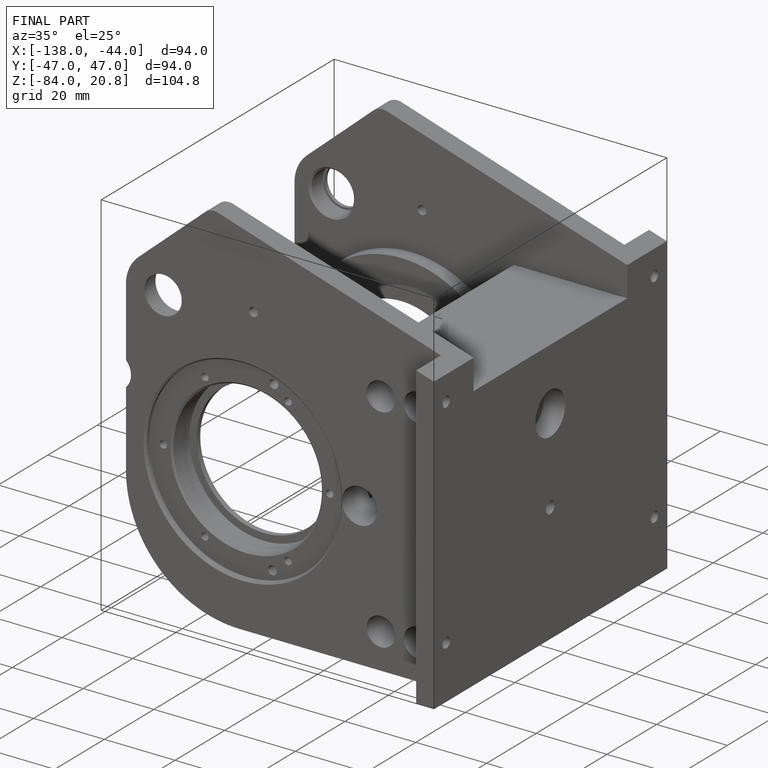
[diagram: finished part — iso view with bounding-box wireframe]
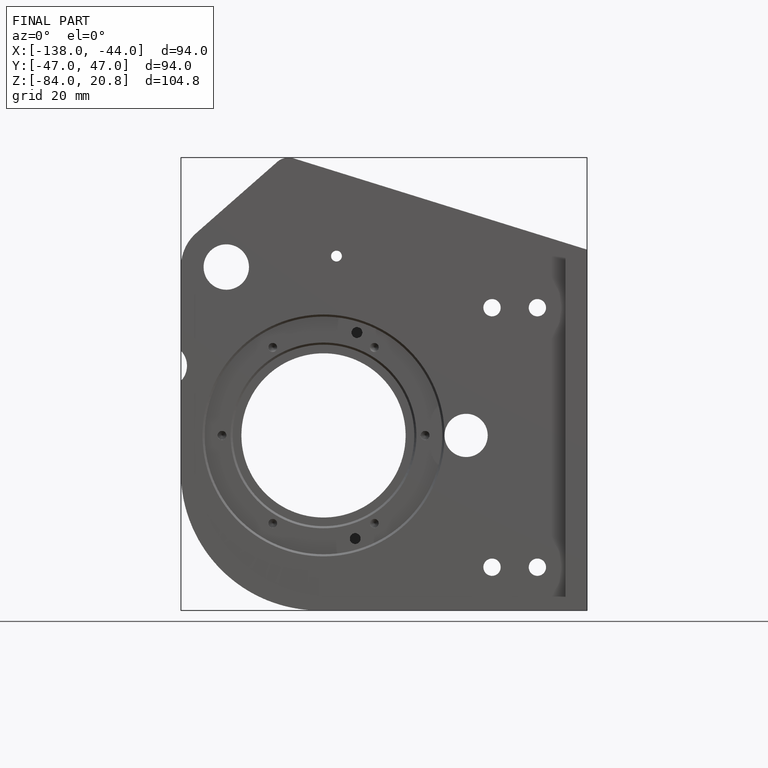
[diagram: finished part — front view with bounding-box wireframe]
